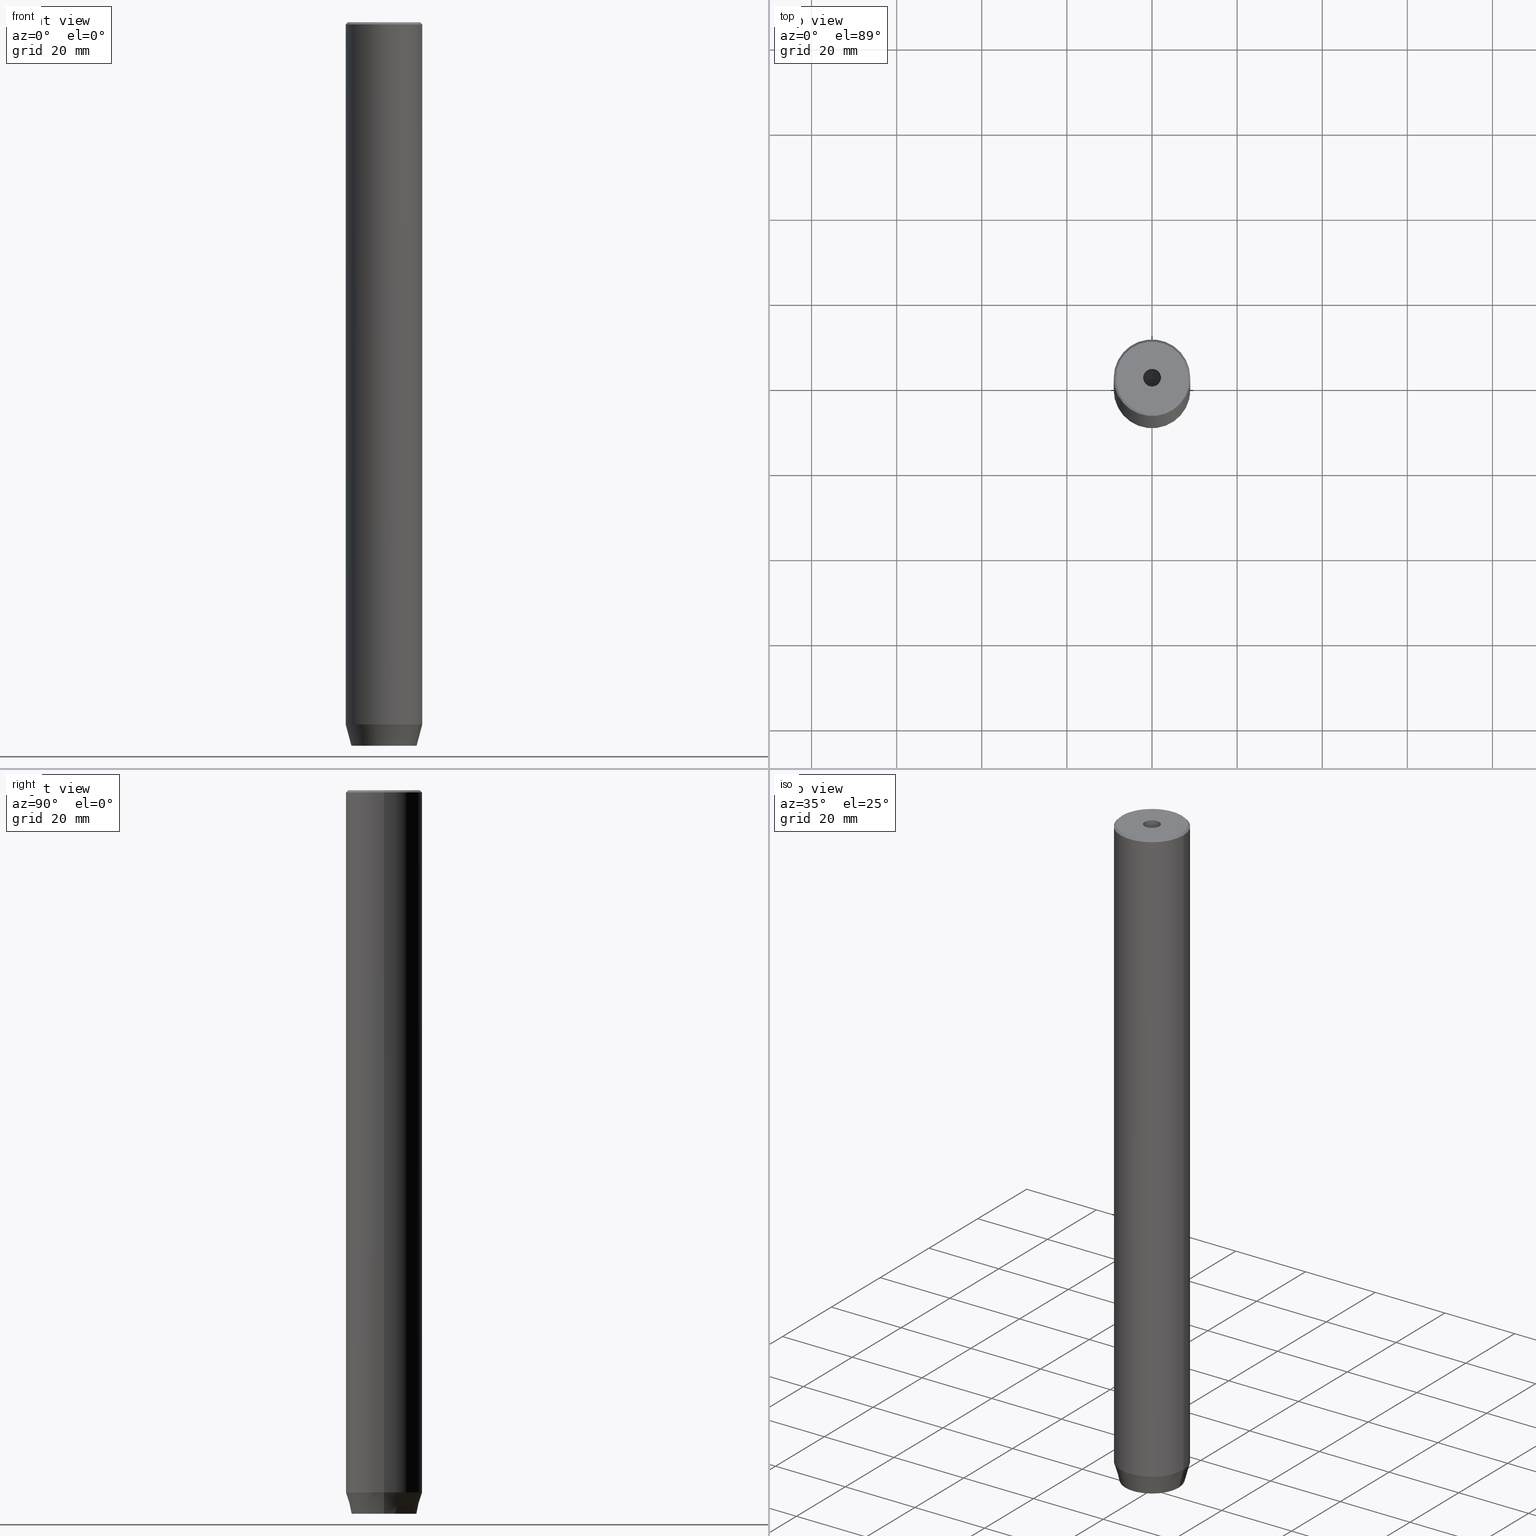
[diagram: canonical four-view strip — front | top / right | iso, engineering-drawing reading convention]
A machine part, canonical four-view strip (front | top / right | iso — engineering-drawing reading convention). The complete STEP part file that produces these views, byte-faithful:
ISO-10303-21;
HEADER;
FILE_DESCRIPTION (( 'STEP AP203' ),
    '1' );
FILE_NAME ('5474.STEP',
    '2024-01-02T20:35:26',
    ( '' ),
    ( '' ),
    'SwSTEP 2.0',
    'SolidWorks 2019',
    '' );
FILE_SCHEMA (( 'CONFIG_CONTROL_DESIGN' ));
ENDSEC;

DATA;
#1 = EDGE_LOOP ( 'NONE', ( #437, #369, #483, #522 ) ) ;
#2 = ORIENTED_EDGE ( 'NONE', *, *, #175, .T. ) ;
#3 = AXIS2_PLACEMENT_3D ( 'NONE', #268, #467, #51 ) ;
#4 = CARTESIAN_POINT ( 'NONE',  ( 3.000000000000000000, -1.732050807568876527, -167.2000000000000171 ) ) ;
#5 = LOCAL_TIME ( 21, 35, 26.00000000000000000, #195 ) ;
#6 = CYLINDRICAL_SURFACE ( 'NONE', #106, 2.099999999999997424 ) ;
#7 = DIRECTION ( 'NONE',  ( 1.000000000000000000, 0.000000000000000000, 0.000000000000000000 ) ) ;
#8 = ORIENTED_EDGE ( 'NONE', *, *, #336, .T. ) ;
#9 = APPLICATION_CONTEXT ( 'configuration controlled 3d designs of mechanical parts and assemblies' ) ;
#10 = CONICAL_SURFACE ( 'NONE', #305, 2.099999999999996092, 1.029744258676652091 ) ;
#11 = CARTESIAN_POINT ( 'NONE',  ( 0.000000000000000000, 0.000000000000000000, -1.990051048614449116E-16 ) ) ;
#12 = VECTOR ( 'NONE', #435, 1000.000000000000000 ) ;
#13 = ORIENTED_EDGE ( 'NONE', *, *, #412, .F. ) ;
#14 = AXIS2_PLACEMENT_3D ( 'NONE', #503, #179, #463 ) ;
#15 = CARTESIAN_POINT ( 'NONE',  ( 0.000000000000000000, 0.000000000000000000, 0.000000000000000000 ) ) ;
#16 = PERSON_AND_ORGANIZATION_ROLE ( 'creator' ) ;
#17 = DIRECTION ( 'NONE',  ( 1.000000000000000000, 0.000000000000000000, 0.000000000000000000 ) ) ;
#18 = ADVANCED_FACE ( 'NONE', ( #505 ), #418, .F. ) ;
#19 = DIRECTION ( 'NONE',  ( 0.000000000000000000, 0.000000000000000000, -1.000000000000000000 ) ) ;
#20 = AXIS2_PLACEMENT_3D ( 'NONE', #335, #30, #17 ) ;
#21 = PRODUCT_DEFINITION ( 'NEZN�M�', '', #129, #31 ) ;
#22 = VECTOR ( 'NONE', #530, 1000.000000000000000 ) ;
#23 = ORIENTED_EDGE ( 'NONE', *, *, #286, .T. ) ;
#24 = DIRECTION ( 'NONE',  ( 0.8660254037844385966, -0.5000000000000001110, 0.000000000000000000 ) ) ;
#25 = CARTESIAN_POINT ( 'NONE',  ( -1.500000000000000666, -2.598076211353316456, -170.0000000000000000 ) ) ;
#26 = ADVANCED_FACE ( 'NONE', ( #391 ), #430, .T. ) ;
#27 = APPROVAL_DATE_TIME ( #294, #130 ) ;
#28 = CARTESIAN_POINT ( 'NONE',  ( 7.660254037844374864, 0.000000000000000000, -170.0000000000000000 ) ) ;
#29 = CC_DESIGN_DATE_AND_TIME_ASSIGNMENT ( #432, #61, ( #21 ) ) ;
#30 = DIRECTION ( 'NONE',  ( -0.000000000000000000, -0.000000000000000000, 1.000000000000000000 ) ) ;
#31 = DESIGN_CONTEXT ( 'detailed design', #9, 'design' ) ;
#32 = DIRECTION ( 'NONE',  ( -0.000000000000000000, -0.000000000000000000, 1.000000000000000000 ) ) ;
#33 = EDGE_LOOP ( 'NONE', ( #23, #234, #275, #218 ) ) ;
#34 = VERTEX_POINT ( 'NONE', #341 ) ;
#35 = CARTESIAN_POINT ( 'NONE',  ( 0.000000000000000000, 0.000000000000000000, 0.000000000000000000 ) ) ;
#36 = ADVANCED_FACE ( 'NONE', ( #128 ), #65, .T. ) ;
#37 = DIRECTION ( 'NONE',  ( -0.000000000000000000, -0.000000000000000000, 1.000000000000000000 ) ) ;
#38 = CONICAL_SURFACE ( 'NONE', #375, 8.500000000000007105, 0.7853981633974447263 ) ;
#39 = SHAPE_DEFINITION_REPRESENTATION ( #506, #165 ) ;
#40 = LOCAL_TIME ( 21, 35, 26.00000000000000000, #519 ) ;
#41 = DIRECTION ( 'NONE',  ( 1.000000000000000000, 0.000000000000000000, 0.000000000000000000 ) ) ;
#42 = ORIENTED_EDGE ( 'NONE', *, *, #298, .T. ) ;
#43 = DATE_TIME_ROLE ( 'classification_date' ) ;
#44 = CARTESIAN_POINT ( 'NONE',  ( -1.084202172485504434E-16, 3.464101615137754830, -167.2000000000000171 ) ) ;
#45 = DIRECTION ( 'NONE',  ( -0.8571673007021111124, 1.049727191138617217E-16, 0.5150380749100562650 ) ) ;
#46 = CONICAL_SURFACE ( 'NONE', #274, 9.000000000000000000, 0.2617993877991497964 ) ;
#47 = EDGE_LOOP ( 'NONE', ( #373, #325, #227, #365 ) ) ;
#48 = VECTOR ( 'NONE', #79, 1000.000000000000114 ) ;
#49 = DIRECTION ( 'NONE',  ( 0.000000000000000000, -0.000000000000000000, 1.000000000000000000 ) ) ;
#50 = ADVANCED_FACE ( 'NONE', ( #565 ), #324, .T. ) ;
#51 = DIRECTION ( 'NONE',  ( 1.000000000000000000, 0.000000000000000000, 0.000000000000000000 ) ) ;
#52 = DIRECTION ( 'NONE',  ( -0.000000000000000000, -0.000000000000000000, 1.000000000000000000 ) ) ;
#53 = EDGE_CURVE ( 'NONE', #100, #497, #575, .T. ) ;
#54 = CARTESIAN_POINT ( 'NONE',  ( -3.000000000000000000, -1.732050807568877859, -170.0000000000000000 ) ) ;
#55 = VECTOR ( 'NONE', #390, 1000.000000000000000 ) ;
#56 = LINE ( 'NONE', #232, #242 ) ;
#57 = LOCAL_TIME ( 21, 35, 26.00000000000000000, #186 ) ;
#58 = VERTEX_POINT ( 'NONE', #578 ) ;
#59 = LINE ( 'NONE', #288, #55 ) ;
#60 = EDGE_CURVE ( 'NONE', #217, #102, #209, .T. ) ;
#61 = DATE_TIME_ROLE ( 'creation_date' ) ;
#62 = CARTESIAN_POINT ( 'NONE',  ( -1.499999999999999556, 2.598076211353316012, -170.0000000000000000 ) ) ;
#63 =( LENGTH_UNIT ( ) NAMED_UNIT ( * ) SI_UNIT ( .MILLI., .METRE. ) );
#64 = CARTESIAN_POINT ( 'NONE',  ( -1.500000000000000666, -2.598076211353316456, -167.2000000000000171 ) ) ;
#65 = CYLINDRICAL_SURFACE ( 'NONE', #74, 9.000000000000000000 ) ;
#66 = CARTESIAN_POINT ( 'NONE',  ( -3.000000000000000000, -1.732050807568877859, -167.2000000000000171 ) ) ;
#67 = ORIENTED_EDGE ( 'NONE', *, *, #205, .T. ) ;
#68 = EDGE_CURVE ( 'NONE', #34, #89, #59, .T. ) ;
#69 = ORIENTED_EDGE ( 'NONE', *, *, #326, .T. ) ;
#70 = EDGE_CURVE ( 'NONE', #507, #206, #199, .T. ) ;
#71 = CARTESIAN_POINT ( 'NONE',  ( -9.000000000000000000, 1.102182119232617714E-15, 0.000000000000000000 ) ) ;
#72 = PERSON_AND_ORGANIZATION_ROLE ( 'design_supplier' ) ;
#73 = CARTESIAN_POINT ( 'NONE',  ( 1.500000000000000222, -2.598076211353315568, -167.2000000000000171 ) ) ;
#74 = AXIS2_PLACEMENT_3D ( 'NONE', #245, #76, #257 ) ;
#75 = APPLICATION_CONTEXT ( 'configuration controlled 3d designs of mechanical parts and assemblies' ) ;
#76 = DIRECTION ( 'NONE',  ( -0.000000000000000000, -0.000000000000000000, 1.000000000000000000 ) ) ;
#77 = CC_DESIGN_APPROVAL ( #395, ( #315 ) ) ;
#78 = SECURITY_CLASSIFICATION_LEVEL ( 'unclassified' ) ;
#79 = DIRECTION ( 'NONE',  ( 0.7071067811865451302, 8.659560562354903276E-17, -0.7071067811865500152 ) ) ;
#80 = EDGE_LOOP ( 'NONE', ( #329, #355, #248, #114 ) ) ;
#81 = DATE_AND_TIME ( #346, #306 ) ;
#82 = LINE ( 'NONE', #536, #22 ) ;
#83 = ORIENTED_EDGE ( 'NONE', *, *, #361, .F. ) ;
#84 = CARTESIAN_POINT ( 'NONE',  ( 2.099999999999996092, 0.000000000000000000, -20.00000000000000000 ) ) ;
#85 = ADVANCED_FACE ( 'NONE', ( #574 ), #479, .F. ) ;
#86 = AXIS2_PLACEMENT_3D ( 'NONE', #239, #296, #251 ) ;
#87 = ORIENTED_EDGE ( 'NONE', *, *, #466, .F. ) ;
#88 = CARTESIAN_POINT ( 'NONE',  ( 1.500000000000000222, 2.598076211353315568, -170.0000000000000000 ) ) ;
#89 = VERTEX_POINT ( 'NONE', #113 ) ;
#90 = ORIENTED_EDGE ( 'NONE', *, *, #70, .T. ) ;
#91 = FACE_OUTER_BOUND ( 'NONE', #1, .T. ) ;
#92 = EDGE_LOOP ( 'NONE', ( #359, #215, #225, #42 ) ) ;
#93 = FACE_BOUND ( 'NONE', #147, .T. ) ;
#94 = VECTOR ( 'NONE', #587, 1000.000000000000000 ) ;
#95 = ADVANCED_FACE ( 'NONE', ( #153 ), #46, .T. ) ;
#96 = DIRECTION ( 'NONE',  ( -1.000000000000000000, 0.000000000000000000, 0.000000000000000000 ) ) ;
#97 = ADVANCED_FACE ( 'NONE', ( #472, #156 ), #191, .T. ) ;
#98 = ORIENTED_EDGE ( 'NONE', *, *, #568, .T. ) ;
#99 = LINE ( 'NONE', #4, #443 ) ;
#100 = VERTEX_POINT ( 'NONE', #482 ) ;
#101 = CARTESIAN_POINT ( 'NONE',  ( -8.500000000000007105, 0.000000000000000000, 0.000000000000000000 ) ) ;
#102 = VERTEX_POINT ( 'NONE', #151 ) ;
#103 = ORIENTED_EDGE ( 'NONE', *, *, #134, .T. ) ;
#104 = AXIS2_PLACEMENT_3D ( 'NONE', #557, #19, #383 ) ;
#105 = DIRECTION ( 'NONE',  ( 2.503857664561933362E-16, -1.000000000000000000, 0.000000000000000000 ) ) ;
#106 = AXIS2_PLACEMENT_3D ( 'NONE', #414, #222, #376 ) ;
#107 = CIRCLE ( 'NONE', #14, 9.000000000000000000 ) ;
#108 = ORIENTED_EDGE ( 'NONE', *, *, #488, .T. ) ;
#109 = CALENDAR_DATE ( 2024, 2, 1 ) ;
#110 = PLANE ( 'NONE',  #548 ) ;
#111 = LINE ( 'NONE', #198, #540 ) ;
#112 = EDGE_CURVE ( 'NONE', #299, #187, #481, .T. ) ;
#113 = CARTESIAN_POINT ( 'NONE',  ( 3.000000000000000000, -1.732050807568876527, -170.0000000000000000 ) ) ;
#114 = ORIENTED_EDGE ( 'NONE', *, *, #544, .T. ) ;
#115 = CALENDAR_DATE ( 2024, 2, 1 ) ;
#116 = ADVANCED_FACE ( 'NONE', ( #564 ), #345, .F. ) ;
#117 = LINE ( 'NONE', #62, #118 ) ;
#118 = VECTOR ( 'NONE', #243, 999.9999999999998863 ) ;
#119 = VECTOR ( 'NONE', #560, 1000.000000000000000 ) ;
#120 = CARTESIAN_POINT ( 'NONE',  ( 0.000000000000000000, 0.000000000000000000, 0.000000000000000000 ) ) ;
#121 = DIRECTION ( 'NONE',  ( -1.000000000000000000, -2.503857664561933362E-16, 0.000000000000000000 ) ) ;
#122 = DIRECTION ( 'NONE',  ( -0.000000000000000000, -0.000000000000000000, 1.000000000000000000 ) ) ;
#123 = DIRECTION ( 'NONE',  ( 1.000000000000000000, 0.000000000000000000, 0.000000000000000000 ) ) ;
#124 = EDGE_CURVE ( 'NONE', #511, #187, #425, .T. ) ;
#125 = DIRECTION ( 'NONE',  ( -0.8660254037844385966, -0.5000000000000001110, 0.000000000000000000 ) ) ;
#126 = EDGE_LOOP ( 'NONE', ( #184, #145, #277, #103 ) ) ;
#127 = CLOSED_SHELL ( 'NONE', ( #446, #18, #50, #26, #381, #97, #527, #36, #95, #429, #85, #553, #181, #116, #518, #583, #249, #262, #221 ) ) ;
#128 = FACE_OUTER_BOUND ( 'NONE', #80, .T. ) ;
#129 = PRODUCT_DEFINITION_FORMATION_WITH_SPECIFIED_SOURCE ( 'LIBOVOLN�', '', #203, .NOT_KNOWN. ) ;
#130 = APPROVAL ( #556, 'NEUR�EN�' ) ;
#131 = DIRECTION ( 'NONE',  ( -0.000000000000000000, -0.000000000000000000, 1.000000000000000000 ) ) ;
#132 = DIRECTION ( 'NONE',  ( -0.000000000000000000, -0.000000000000000000, 1.000000000000000000 ) ) ;
#133 = CARTESIAN_POINT ( 'NONE',  ( -5.207640850796248781E-15, 0.000000000000000000, -21.26180729995787999 ) ) ;
#134 = EDGE_CURVE ( 'NONE', #546, #393, #374, .T. ) ;
#135 = CIRCLE ( 'NONE', #283, 2.099999999999998757 ) ;
#136 = CARTESIAN_POINT ( 'NONE',  ( 1.500000000000000222, -2.598076211353315568, -170.0000000000000000 ) ) ;
#137 = ORIENTED_EDGE ( 'NONE', *, *, #176, .F. ) ;
#138 = DIRECTION ( 'NONE',  ( -2.503857664561932376E-16, 1.000000000000000000, 0.000000000000000000 ) ) ;
#139 = ORIENTED_EDGE ( 'NONE', *, *, #193, .F. ) ;
#140 = ORIENTED_EDGE ( 'NONE', *, *, #326, .F. ) ;
#141 = CARTESIAN_POINT ( 'NONE',  ( 8.500000000000007105, 1.071565949253934321E-15, 0.000000000000000000 ) ) ;
#142 = AXIS2_PLACEMENT_3D ( 'NONE', #439, #188, #526 ) ;
#143 = CARTESIAN_POINT ( 'NONE',  ( 0.000000000000000000, 0.000000000000000000, -170.0000000000000000 ) ) ;
#144 = FACE_OUTER_BOUND ( 'NONE', #259, .T. ) ;
#145 = ORIENTED_EDGE ( 'NONE', *, *, #230, .F. ) ;
#146 = ORIENTED_EDGE ( 'NONE', *, *, #475, .T. ) ;
#147 = EDGE_LOOP ( 'NONE', ( #541, #13 ) ) ;
#148 = DIRECTION ( 'NONE',  ( -0.000000000000000000, -0.000000000000000000, 1.000000000000000000 ) ) ;
#149 = EDGE_CURVE ( 'NONE', #313, #228, #117, .T. ) ;
#150 =( NAMED_UNIT ( * ) SI_UNIT ( $, .STERADIAN. ) SOLID_ANGLE_UNIT ( ) );
#151 = CARTESIAN_POINT ( 'NONE',  ( -7.660254037844374864, 1.020146339021393877E-15, -170.0000000000000000 ) ) ;
#152 = APPROVAL_ROLE ( '' ) ;
#153 = FACE_OUTER_BOUND ( 'NONE', #272, .T. ) ;
#154 = DIRECTION ( 'NONE',  ( 0.5000000000000001110, -0.8660254037844385966, 0.000000000000000000 ) ) ;
#155 = VECTOR ( 'NONE', #433, 1000.000000000000114 ) ;
#156 = FACE_OUTER_BOUND ( 'NONE', #279, .T. ) ;
#157 = VECTOR ( 'NONE', #580, 1000.000000000000000 ) ;
#158 = DIRECTION ( 'NONE',  ( 1.000000000000000000, 0.000000000000000000, 0.000000000000000000 ) ) ;
#159 = DIRECTION ( 'NONE',  ( -0.5000000000000001110, -0.8660254037844385966, 0.000000000000000000 ) ) ;
#160 = DIRECTION ( 'NONE',  ( -0.8660254037844385966, 0.5000000000000001110, 0.000000000000000000 ) ) ;
#161 = PERSON_AND_ORGANIZATION_ROLE ( 'classification_officer' ) ;
#162 = CARTESIAN_POINT ( 'NONE',  ( -9.000000000000000000, 1.102182119232617714E-15, -164.9999999999999716 ) ) ;
#163 = CC_DESIGN_DATE_AND_TIME_ASSIGNMENT ( #81, #43, ( #315 ) ) ;
#164 = DIRECTION ( 'NONE',  ( 1.000000000000000000, 0.000000000000000000, 0.000000000000000000 ) ) ;
#165 = ADVANCED_BREP_SHAPE_REPRESENTATION ( '5474', ( #473, #353 ), #486 ) ;
#166 = CARTESIAN_POINT ( 'NONE',  ( -2.099999999999997424, 2.571758278209438506E-16, 0.000000000000000000 ) ) ;
#167 = VECTOR ( 'NONE', #216, 999.9999999999998863 ) ;
#168 = AXIS2_PLACEMENT_3D ( 'NONE', #235, #121, #105 ) ;
#169 = CARTESIAN_POINT ( 'NONE',  ( -3.000000000000000888, 1.732050807568876527, -167.2000000000000171 ) ) ;
#170 = CARTESIAN_POINT ( 'NONE',  ( 0.000000000000000000, 0.000000000000000000, 0.000000000000000000 ) ) ;
#171 = CARTESIAN_POINT ( 'NONE',  ( -2.168404344971008868E-16, 3.464101615137753942, -170.0000000000000000 ) ) ;
#172 = AXIS2_PLACEMENT_3D ( 'NONE', #569, #524, #123 ) ;
#173 = ORIENTED_EDGE ( 'NONE', *, *, #254, .F. ) ;
#174 = DIRECTION ( 'NONE',  ( -0.8660254037844385966, -0.5000000000000001110, 0.000000000000000000 ) ) ;
#175 = EDGE_CURVE ( 'NONE', #187, #183, #331, .T. ) ;
#176 = EDGE_CURVE ( 'NONE', #102, #299, #380, .T. ) ;
#177 = LINE ( 'NONE', #328, #256 ) ;
#178 = ORIENTED_EDGE ( 'NONE', *, *, #332, .F. ) ;
#179 = DIRECTION ( 'NONE',  ( 0.000000000000000000, 0.000000000000000000, -1.000000000000000000 ) ) ;
#180 = ORIENTED_EDGE ( 'NONE', *, *, #499, .F. ) ;
#181 = ADVANCED_FACE ( 'NONE', ( #297 ), #110, .F. ) ;
#182 = CARTESIAN_POINT ( 'NONE',  ( 3.000000000000000000, -1.732050807568876527, -167.2000000000000171 ) ) ;
#183 = VERTEX_POINT ( 'NONE', #194 ) ;
#184 = ORIENTED_EDGE ( 'NONE', *, *, #238, .F. ) ;
#185 = DIRECTION ( 'NONE',  ( 0.8660254037844385966, -0.5000000000000001110, 0.000000000000000000 ) ) ;
#186 = COORDINATED_UNIVERSAL_TIME_OFFSET ( 1, 0, .AHEAD. ) ;
#187 = VERTEX_POINT ( 'NONE', #347 ) ;
#188 = DIRECTION ( 'NONE',  ( 0.000000000000000000, 0.000000000000000000, -1.000000000000000000 ) ) ;
#189 = VECTOR ( 'NONE', #287, 1000.000000000000000 ) ;
#190 = PERSON_AND_ORGANIZATION ( #244, #532 ) ;
#191 = PLANE ( 'NONE',  #104 ) ;
#192 = CIRCLE ( 'NONE', #457, 7.660254037844374864 ) ;
#193 = EDGE_CURVE ( 'NONE', #217, #58, #529, .T. ) ;
#194 = CARTESIAN_POINT ( 'NONE',  ( 9.000000000000000000, 0.000000000000000000, -0.4999999999999952260 ) ) ;
#195 = COORDINATED_UNIVERSAL_TIME_OFFSET ( 1, 0, .AHEAD. ) ;
#196 = FACE_OUTER_BOUND ( 'NONE', #126, .T. ) ;
#197 = ORIENTED_EDGE ( 'NONE', *, *, #402, .F. ) ;
#198 = CARTESIAN_POINT ( 'NONE',  ( -3.000000000000000444, -7.511572993685800087E-16, -170.0000000000000000 ) ) ;
#199 = LINE ( 'NONE', #291, #189 ) ;
#200 = DIRECTION ( 'NONE',  ( -1.000000000000000000, 0.000000000000000000, 0.000000000000000000 ) ) ;
#201 = DIRECTION ( 'NONE',  ( 1.000000000000000000, 0.000000000000000000, 0.000000000000000000 ) ) ;
#202 = ORIENTED_EDGE ( 'NONE', *, *, #466, .T. ) ;
#203 = PRODUCT ( '5474', '5474', '', ( #338 ) ) ;
#204 = PLANE ( 'NONE',  #293 ) ;
#205 = EDGE_CURVE ( 'NONE', #494, #511, #441, .T. ) ;
#206 = VERTEX_POINT ( 'NONE', #66 ) ;
#207 = CARTESIAN_POINT ( 'NONE',  ( 0.000000000000000000, 0.000000000000000000, -20.00000000000000000 ) ) ;
#208 = ORIENTED_EDGE ( 'NONE', *, *, #568, .F. ) ;
#209 = CIRCLE ( 'NONE', #558, 7.660254037844374864 ) ;
#210 = VECTOR ( 'NONE', #304, 1000.000000000000000 ) ;
#211 = EDGE_CURVE ( 'NONE', #507, #100, #301, .T. ) ;
#212 = ORIENTED_EDGE ( 'NONE', *, *, #357, .F. ) ;
#213 = DIRECTION ( 'NONE',  ( 1.000000000000000000, 0.000000000000000000, 0.000000000000000000 ) ) ;
#214 = DIRECTION ( 'NONE',  ( 1.000000000000000000, 0.000000000000000000, 0.000000000000000000 ) ) ;
#215 = ORIENTED_EDGE ( 'NONE', *, *, #485, .F. ) ;
#216 = DIRECTION ( 'NONE',  ( 0.8660254037844387076, 0.4999999999999999445, 0.000000000000000000 ) ) ;
#217 = VERTEX_POINT ( 'NONE', #28 ) ;
#218 = ORIENTED_EDGE ( 'NONE', *, *, #469, .T. ) ;
#219 = VECTOR ( 'NONE', #174, 1000.000000000000000 ) ;
#220 = DIRECTION ( 'NONE',  ( 1.000000000000000000, 0.000000000000000000, 0.000000000000000000 ) ) ;
#221 = ADVANCED_FACE ( 'NONE', ( #196 ), #445, .F. ) ;
#222 = DIRECTION ( 'NONE',  ( -0.000000000000000000, -0.000000000000000000, 1.000000000000000000 ) ) ;
#223 = ORIENTED_EDGE ( 'NONE', *, *, #53, .T. ) ;
#224 = ORIENTED_EDGE ( 'NONE', *, *, #405, .F. ) ;
#225 = ORIENTED_EDGE ( 'NONE', *, *, #423, .F. ) ;
#226 = CARTESIAN_POINT ( 'NONE',  ( -2.099999999999996092, 2.571758278209436534E-16, -20.00000000000000000 ) ) ;
#227 = ORIENTED_EDGE ( 'NONE', *, *, #175, .F. ) ;
#228 = VERTEX_POINT ( 'NONE', #171 ) ;
#229 = VECTOR ( 'NONE', #561, 1000.000000000000000 ) ;
#230 = EDGE_CURVE ( 'NONE', #312, #320, #531, .T. ) ;
#231 = AXIS2_PLACEMENT_3D ( 'NONE', #261, #456, #213 ) ;
#232 = CARTESIAN_POINT ( 'NONE',  ( -1.084202172485504434E-16, 3.464101615137754830, -167.2000000000000171 ) ) ;
#233 = ORIENTED_EDGE ( 'NONE', *, *, #581, .F. ) ;
#234 = ORIENTED_EDGE ( 'NONE', *, *, #211, .F. ) ;
#235 = CARTESIAN_POINT ( 'NONE',  ( -3.000000000000000444, -7.511572993685800087E-16, -167.2000000000000171 ) ) ;
#236 = ORIENTED_EDGE ( 'NONE', *, *, #149, .F. ) ;
#237 = PLANE ( 'NONE',  #496 ) ;
#238 = EDGE_CURVE ( 'NONE', #320, #393, #585, .T. ) ;
#239 = CARTESIAN_POINT ( 'NONE',  ( -1.499999999999999556, 2.598076211353316012, -167.2000000000000171 ) ) ;
#240 = ORIENTED_EDGE ( 'NONE', *, *, #475, .F. ) ;
#241 = VECTOR ( 'NONE', #340, 1000.000000000000114 ) ;
#242 = VECTOR ( 'NONE', #378, 1000.000000000000000 ) ;
#243 = DIRECTION ( 'NONE',  ( 0.8660254037844387076, 0.4999999999999999445, 0.000000000000000000 ) ) ;
#244 = PERSON ( 'NEUR�EN�', 'NEUR�EN�', 'NEUR�EN�', ('NEUR�EN�'), ('NEUR�EN�'), ('NEUR�EN�') ) ;
#245 = CARTESIAN_POINT ( 'NONE',  ( 0.000000000000000000, 0.000000000000000000, 0.000000000000000000 ) ) ;
#246 = DIRECTION ( 'NONE',  ( 0.000000000000000000, 0.000000000000000000, 1.000000000000000000 ) ) ;
#247 = CARTESIAN_POINT ( 'NONE',  ( -2.168404344971008868E-16, -3.464101615137754830, -167.2000000000000171 ) ) ;
#248 = ORIENTED_EDGE ( 'NONE', *, *, #451, .T. ) ;
#249 = ADVANCED_FACE ( 'NONE', ( #533 ), #204, .T. ) ;
#250 = CARTESIAN_POINT ( 'NONE',  ( 2.099999999999997424, 0.000000000000000000, 0.000000000000000000 ) ) ;
#251 = DIRECTION ( 'NONE',  ( -0.8660254037844387076, -0.4999999999999999445, 0.000000000000000000 ) ) ;
#252 = DIRECTION ( 'NONE',  ( 0.000000000000000000, 0.000000000000000000, -1.000000000000000000 ) ) ;
#253 = DIRECTION ( 'NONE',  ( -0.000000000000000000, -0.000000000000000000, 1.000000000000000000 ) ) ;
#254 = EDGE_CURVE ( 'NONE', #511, #494, #455, .T. ) ;
#255 = CARTESIAN_POINT ( 'NONE',  ( 0.000000000000000000, 0.000000000000000000, -20.00000000000000000 ) ) ;
#256 = VECTOR ( 'NONE', #185, 1000.000000000000000 ) ;
#257 = DIRECTION ( 'NONE',  ( 1.000000000000000000, 0.000000000000000000, 0.000000000000000000 ) ) ;
#258 = LINE ( 'NONE', #449, #571 ) ;
#259 = EDGE_LOOP ( 'NONE', ( #302, #173, #415, #269 ) ) ;
#260 = APPROVAL_STATUS ( 'not_yet_approved' ) ;
#261 = CARTESIAN_POINT ( 'NONE',  ( 0.000000000000000000, 0.000000000000000000, -164.9999999999999716 ) ) ;
#262 = ADVANCED_FACE ( 'NONE', ( #360 ), #10, .F. ) ;
#263 = PERSON_AND_ORGANIZATION ( #244, #532 ) ;
#264 = CARTESIAN_POINT ( 'NONE',  ( -3.000000000000000888, 1.732050807568876527, -170.0000000000000000 ) ) ;
#265 = CC_DESIGN_SECURITY_CLASSIFICATION ( #315, ( #129 ) ) ;
#266 = COORDINATED_UNIVERSAL_TIME_OFFSET ( 1, 0, .AHEAD. ) ;
#267 = DIRECTION ( 'NONE',  ( -1.000000000000000000, 0.000000000000000000, -0.000000000000000000 ) ) ;
#268 = CARTESIAN_POINT ( 'NONE',  ( 0.000000000000000000, 0.000000000000000000, -20.00000000000000000 ) ) ;
#269 = ORIENTED_EDGE ( 'NONE', *, *, #544, .F. ) ;
#270 = APPROVAL ( #513, 'NEUR�EN�' ) ;
#271 = FACE_OUTER_BOUND ( 'NONE', #417, .T. ) ;
#272 = EDGE_LOOP ( 'NONE', ( #137, #554, #450, #212 ) ) ;
#273 = ORIENTED_EDGE ( 'NONE', *, *, #361, .T. ) ;
#274 = AXIS2_PLACEMENT_3D ( 'NONE', #387, #122, #428 ) ;
#275 = ORIENTED_EDGE ( 'NONE', *, *, #488, .F. ) ;
#276 = CARTESIAN_POINT ( 'NONE',  ( 9.000000000000000000, 0.000000000000000000, 0.000000000000000000 ) ) ;
#277 = ORIENTED_EDGE ( 'NONE', *, *, #581, .T. ) ;
#278 = PLANE ( 'NONE',  #409 ) ;
#279 = EDGE_LOOP ( 'NONE', ( #535, #371 ) ) ;
#280 = CC_DESIGN_PERSON_AND_ORGANIZATION_ASSIGNMENT ( #491, #161, ( #315 ) ) ;
#281 = ORIENTED_EDGE ( 'NONE', *, *, #211, .T. ) ;
#282 = DIRECTION ( 'NONE',  ( 0.000000000000000000, 0.000000000000000000, -1.000000000000000000 ) ) ;
#283 = AXIS2_PLACEMENT_3D ( 'NONE', #11, #508, #545 ) ;
#284 = APPROVAL_ROLE ( '' ) ;
#285 = APPROVAL_DATE_TIME ( #470, #270 ) ;
#286 = EDGE_CURVE ( 'NONE', #89, #100, #489, .T. ) ;
#287 = DIRECTION ( 'NONE',  ( -0.8660254037844385966, 0.5000000000000001110, 0.000000000000000000 ) ) ;
#288 = CARTESIAN_POINT ( 'NONE',  ( 3.000000000000000000, 0.000000000000000000, -170.0000000000000000 ) ) ;
#289 = CC_DESIGN_PERSON_AND_ORGANIZATION_ASSIGNMENT ( #263, #72, ( #129 ) ) ;
#290 = PERSON_AND_ORGANIZATION ( #244, #532 ) ;
#291 = CARTESIAN_POINT ( 'NONE',  ( -1.500000000000000666, -2.598076211353316456, -167.2000000000000171 ) ) ;
#292 = CARTESIAN_POINT ( 'NONE',  ( 0.000000000000000000, 0.000000000000000000, -164.9999999999999716 ) ) ;
#293 = AXIS2_PLACEMENT_3D ( 'NONE', #392, #308, #267 ) ;
#294 = DATE_AND_TIME ( #115, #40 ) ;
#295 = VECTOR ( 'NONE', #447, 1000.000000000000000 ) ;
#296 = DIRECTION ( 'NONE',  ( -0.4999999999999999445, 0.8660254037844387076, 0.000000000000000000 ) ) ;
#297 = FACE_OUTER_BOUND ( 'NONE', #493, .T. ) ;
#298 = EDGE_CURVE ( 'NONE', #319, #313, #577, .T. ) ;
#299 = VERTEX_POINT ( 'NONE', #162 ) ;
#300 = DATE_AND_TIME ( #448, #333 ) ;
#301 = LINE ( 'NONE', #247, #12 ) ;
#302 = ORIENTED_EDGE ( 'NONE', *, *, #339, .F. ) ;
#303 = ORIENTED_EDGE ( 'NONE', *, *, #485, .T. ) ;
#304 = DIRECTION ( 'NONE',  ( -0.000000000000000000, -0.000000000000000000, -1.000000000000000000 ) ) ;
#305 = AXIS2_PLACEMENT_3D ( 'NONE', #255, #539, #201 ) ;
#306 = LOCAL_TIME ( 21, 35, 26.00000000000000000, #266 ) ;
#307 = CC_DESIGN_PERSON_AND_ORGANIZATION_ASSIGNMENT ( #576, #454, ( #129 ) ) ;
#308 = DIRECTION ( 'NONE',  ( 0.000000000000000000, 0.000000000000000000, -1.000000000000000000 ) ) ;
#309 = UNCERTAINTY_MEASURE_WITH_UNIT (LENGTH_MEASURE( 1.000000000000000082E-05 ), #63, 'distance_accuracy_value', 'NONE');
#310 = ORIENTED_EDGE ( 'NONE', *, *, #405, .T. ) ;
#311 = DIRECTION ( 'NONE',  ( 1.000000000000000000, 0.000000000000000000, 0.000000000000000000 ) ) ;
#312 = VERTEX_POINT ( 'NONE', #84 ) ;
#313 = VERTEX_POINT ( 'NONE', #264 ) ;
#314 = CARTESIAN_POINT ( 'NONE',  ( -2.099999999999998757, 2.571758278209440478E-16, -1.990051048614449116E-16 ) ) ;
#315 = SECURITY_CLASSIFICATION ( '', '', #78 ) ;
#316 = ORIENTED_EDGE ( 'NONE', *, *, #573, .T. ) ;
#317 = CARTESIAN_POINT ( 'NONE',  ( -3.000000000000000888, 1.732050807568876527, -167.2000000000000171 ) ) ;
#318 = CARTESIAN_POINT ( 'NONE',  ( 3.000000000000000000, 0.000000000000000000, -167.2000000000000171 ) ) ;
#319 = VERTEX_POINT ( 'NONE', #317 ) ;
#320 = VERTEX_POINT ( 'NONE', #459 ) ;
#321 = ORIENTED_EDGE ( 'NONE', *, *, #112, .T. ) ;
#322 = LINE ( 'NONE', #555, #363 ) ;
#323 = EDGE_LOOP ( 'NONE', ( #549, #509, #413, #139 ) ) ;
#324 = CONICAL_SURFACE ( 'NONE', #398, 8.500000000000007105, 0.7853981633974447263 ) ;
#325 = ORIENTED_EDGE ( 'NONE', *, *, #339, .T. ) ;
#326 = EDGE_CURVE ( 'NONE', #206, #497, #487, .T. ) ;
#327 = PLANE ( 'NONE',  #559 ) ;
#328 = CARTESIAN_POINT ( 'NONE',  ( 1.500000000000000222, 2.598076211353315568, -167.2000000000000171 ) ) ;
#329 = ORIENTED_EDGE ( 'NONE', *, *, #112, .F. ) ;
#330 = DIRECTION ( 'NONE',  ( -0.000000000000000000, -0.000000000000000000, 1.000000000000000000 ) ) ;
#331 = CIRCLE ( 'NONE', #142, 9.000000000000000000 ) ;
#332 = EDGE_CURVE ( 'NONE', #396, #34, #348, .T. ) ;
#333 = LOCAL_TIME ( 21, 35, 26.00000000000000000, #404 ) ;
#334 = CALENDAR_DATE ( 2024, 2, 1 ) ;
#335 = CARTESIAN_POINT ( 'NONE',  ( 0.000000000000000000, 0.000000000000000000, -1.990051048614449116E-16 ) ) ;
#336 = EDGE_CURVE ( 'NONE', #396, #426, #82, .T. ) ;
#337 = DIRECTION ( 'NONE',  ( 0.8660254037844385966, 0.5000000000000001110, 0.000000000000000000 ) ) ;
#338 = MECHANICAL_CONTEXT ( 'NONE', #75, 'mechanical' ) ;
#339 = EDGE_CURVE ( 'NONE', #494, #183, #352, .T. ) ;
#340 = DIRECTION ( 'NONE',  ( 0.2588190451025210725, 0.000000000000000000, 0.9659258262890680902 ) ) ;
#341 = CARTESIAN_POINT ( 'NONE',  ( 3.000000000000000000, 1.732050807568876527, -170.0000000000000000 ) ) ;
#342 = AXIS2_PLACEMENT_3D ( 'NONE', #207, #131, #534 ) ;
#343 = VECTOR ( 'NONE', #125, 1000.000000000000000 ) ;
#344 = FACE_OUTER_BOUND ( 'NONE', #452, .T. ) ;
#345 = PLANE ( 'NONE',  #570 ) ;
#346 = CALENDAR_DATE ( 2024, 2, 1 ) ;
#347 = CARTESIAN_POINT ( 'NONE',  ( -9.000000000000000000, 1.102182119232617714E-15, -0.4999999999999952260 ) ) ;
#348 = LINE ( 'NONE', #498, #157 ) ;
#349 = CARTESIAN_POINT ( 'NONE',  ( 0.000000000000000000, 0.000000000000000000, -170.0000000000000000 ) ) ;
#350 = APPROVAL_DATE_TIME ( #300, #395 ) ;
#351 = AXIS2_PLACEMENT_3D ( 'NONE', #35, #132, #41 ) ;
#352 = LINE ( 'NONE', #394, #48 ) ;
#353 = AXIS2_PLACEMENT_3D ( 'NONE', #563, #246, #158 ) ;
#354 = CARTESIAN_POINT ( 'NONE',  ( -3.000000000000000000, -1.732050807568877859, -167.2000000000000171 ) ) ;
#355 = ORIENTED_EDGE ( 'NONE', *, *, #357, .T. ) ;
#356 = VERTEX_POINT ( 'NONE', #44 ) ;
#357 = EDGE_CURVE ( 'NONE', #299, #58, #419, .T. ) ;
#358 = DIRECTION ( 'NONE',  ( -0.000000000000000000, -0.000000000000000000, 1.000000000000000000 ) ) ;
#359 = ORIENTED_EDGE ( 'NONE', *, *, #149, .T. ) ;
#360 = FACE_OUTER_BOUND ( 'NONE', #504, .T. ) ;
#361 = EDGE_CURVE ( 'NONE', #386, #312, #258, .T. ) ;
#362 = VECTOR ( 'NONE', #330, 1000.000000000000000 ) ;
#363 = VECTOR ( 'NONE', #138, 1000.000000000000000 ) ;
#364 = ORIENTED_EDGE ( 'NONE', *, *, #423, .T. ) ;
#365 = ORIENTED_EDGE ( 'NONE', *, *, #124, .F. ) ;
#366 = CARTESIAN_POINT ( 'NONE',  ( -2.168404344971008868E-16, -3.464101615137754830, -167.2000000000000171 ) ) ;
#367 = ORIENTED_EDGE ( 'NONE', *, *, #70, .F. ) ;
#368 = CARTESIAN_POINT ( 'NONE',  ( 1.500000000000000222, -2.598076211353315568, -167.2000000000000171 ) ) ;
#369 = ORIENTED_EDGE ( 'NONE', *, *, #469, .F. ) ;
#370 = PRODUCT_RELATED_PRODUCT_CATEGORY ( 'detail', '', ( #203 ) ) ;
#371 = ORIENTED_EDGE ( 'NONE', *, *, #510, .F. ) ;
#372 = FACE_OUTER_BOUND ( 'NONE', #444, .T. ) ;
#373 = ORIENTED_EDGE ( 'NONE', *, *, #205, .F. ) ;
#374 = CIRCLE ( 'NONE', #20, 2.099999999999998757 ) ;
#375 = AXIS2_PLACEMENT_3D ( 'NONE', #15, #282, #96 ) ;
#376 = DIRECTION ( 'NONE',  ( 1.000000000000000000, 0.000000000000000000, 0.000000000000000000 ) ) ;
#377 = DIRECTION ( 'NONE',  ( 1.000000000000000000, 0.000000000000000000, 0.000000000000000000 ) ) ;
#378 = DIRECTION ( 'NONE',  ( -0.000000000000000000, -0.000000000000000000, -1.000000000000000000 ) ) ;
#379 = DIRECTION ( 'NONE',  ( 1.000000000000000000, 0.000000000000000000, 0.000000000000000000 ) ) ;
#380 = LINE ( 'NONE', #517, #388 ) ;
#381 = ADVANCED_FACE ( 'NONE', ( #399 ), #403, .T. ) ;
#382 = APPROVAL_PERSON_ORGANIZATION ( #528, #395, #397 ) ;
#383 = DIRECTION ( 'NONE',  ( -1.000000000000000000, 0.000000000000000000, -0.000000000000000000 ) ) ;
#384 = CARTESIAN_POINT ( 'NONE',  ( 0.000000000000000000, 0.000000000000000000, -164.9999999999999716 ) ) ;
#385 = CARTESIAN_POINT ( 'NONE',  ( 9.000000000000000000, 0.000000000000000000, -164.9999999999999716 ) ) ;
#386 = VERTEX_POINT ( 'NONE', #133 ) ;
#387 = CARTESIAN_POINT ( 'NONE',  ( 0.000000000000000000, 0.000000000000000000, -164.9999999999999716 ) ) ;
#388 = VECTOR ( 'NONE', #476, 1000.000000000000114 ) ;
#389 = ORIENTED_EDGE ( 'NONE', *, *, #298, .F. ) ;
#390 = DIRECTION ( 'NONE',  ( 0.000000000000000000, -1.000000000000000000, 0.000000000000000000 ) ) ;
#391 = FACE_OUTER_BOUND ( 'NONE', #323, .T. ) ;
#392 = CARTESIAN_POINT ( 'NONE',  ( 0.000000000000000000, 0.000000000000000000, -167.2000000000000171 ) ) ;
#393 = VERTEX_POINT ( 'NONE', #314 ) ;
#394 = CARTESIAN_POINT ( 'NONE',  ( 8.500000000000007105, 1.040949779275251126E-15, 0.000000000000000000 ) ) ;
#395 = APPROVAL ( #260, 'NEUR�EN�' ) ;
#396 = VERTEX_POINT ( 'NONE', #406 ) ;
#397 = APPROVAL_ROLE ( '' ) ;
#398 = AXIS2_PLACEMENT_3D ( 'NONE', #120, #252, #200 ) ;
#399 = FACE_OUTER_BOUND ( 'NONE', #422, .T. ) ;
#400 = APPROVAL_PERSON_ORGANIZATION ( #516, #130, #152 ) ;
#401 = ORIENTED_EDGE ( 'NONE', *, *, #451, .F. ) ;
#402 = EDGE_CURVE ( 'NONE', #228, #34, #495, .T. ) ;
#403 = CYLINDRICAL_SURFACE ( 'NONE', #538, 9.000000000000000000 ) ;
#404 = COORDINATED_UNIVERSAL_TIME_OFFSET ( 1, 0, .AHEAD. ) ;
#405 = EDGE_CURVE ( 'NONE', #386, #320, #408, .T. ) ;
#406 = CARTESIAN_POINT ( 'NONE',  ( 3.000000000000000000, 1.732050807568876527, -167.2000000000000171 ) ) ;
#407 = ORIENTED_EDGE ( 'NONE', *, *, #499, .T. ) ;
#408 = LINE ( 'NONE', #226, #550 ) ;
#409 = AXIS2_PLACEMENT_3D ( 'NONE', #461, #49, #220 ) ;
#410 = FACE_OUTER_BOUND ( 'NONE', #543, .T. ) ;
#411 = ORIENTED_EDGE ( 'NONE', *, *, #68, .F. ) ;
#412 = EDGE_CURVE ( 'NONE', #393, #546, #135, .T. ) ;
#413 = ORIENTED_EDGE ( 'NONE', *, *, #573, .F. ) ;
#414 = CARTESIAN_POINT ( 'NONE',  ( 0.000000000000000000, 0.000000000000000000, 0.000000000000000000 ) ) ;
#415 = ORIENTED_EDGE ( 'NONE', *, *, #124, .T. ) ;
#416 = PLANE ( 'NONE',  #168 ) ;
#417 = EDGE_LOOP ( 'NONE', ( #442, #67 ) ) ;
#418 = CONICAL_SURFACE ( 'NONE', #484, 2.099999999999996092, 1.029744258676652091 ) ;
#419 = CIRCLE ( 'NONE', #231, 9.000000000000000000 ) ;
#420 = CARTESIAN_POINT ( 'NONE',  ( -1.499999999999999556, 2.598076211353316012, -167.2000000000000171 ) ) ;
#421 = EDGE_LOOP ( 'NONE', ( #364, #202, #8, #108, #90, #407 ) ) ;
#422 = EDGE_LOOP ( 'NONE', ( #316, #321, #2, #401 ) ) ;
#423 = EDGE_CURVE ( 'NONE', #319, #356, #542, .T. ) ;
#424 = PERSON_AND_ORGANIZATION ( #244, #532 ) ;
#425 = LINE ( 'NONE', #520, #155 ) ;
#426 = VERTEX_POINT ( 'NONE', #182 ) ;
#427 = APPLICATION_PROTOCOL_DEFINITION ( 'international standard', 'config_control_design', 1994, #9 ) ;
#428 = DIRECTION ( 'NONE',  ( 1.000000000000000000, 0.000000000000000000, 0.000000000000000000 ) ) ;
#429 = ADVANCED_FACE ( 'NONE', ( #144 ), #38, .T. ) ;
#430 = CONICAL_SURFACE ( 'NONE', #477, 9.000000000000000000, 0.2617993877991497964 ) ;
#431 = AXIS2_PLACEMENT_3D ( 'NONE', #384, #480, #379 ) ;
#432 = DATE_AND_TIME ( #334, #5 ) ;
#433 = DIRECTION ( 'NONE',  ( -0.7071067811865451302, 0.000000000000000000, -0.7071067811865500152 ) ) ;
#434 = LINE ( 'NONE', #250, #119 ) ;
#435 = DIRECTION ( 'NONE',  ( -0.000000000000000000, -0.000000000000000000, -1.000000000000000000 ) ) ;
#436 = ORIENTED_EDGE ( 'NONE', *, *, #412, .T. ) ;
#437 = ORIENTED_EDGE ( 'NONE', *, *, #68, .T. ) ;
#438 =( NAMED_UNIT ( * ) PLANE_ANGLE_UNIT ( ) SI_UNIT ( $, .RADIAN. ) );
#439 = CARTESIAN_POINT ( 'NONE',  ( 0.000000000000000000, 0.000000000000000000, -0.4999999999999952260 ) ) ;
#440 = ORIENTED_EDGE ( 'NONE', *, *, #53, .F. ) ;
#441 = CIRCLE ( 'NONE', #172, 8.500000000000007105 ) ;
#442 = ORIENTED_EDGE ( 'NONE', *, *, #254, .T. ) ;
#443 = VECTOR ( 'NONE', #547, 1000.000000000000000 ) ;
#444 = EDGE_LOOP ( 'NONE', ( #98, #389, #180, #69 ) ) ;
#445 = CYLINDRICAL_SURFACE ( 'NONE', #351, 2.099999999999997424 ) ;
#446 = ADVANCED_FACE ( 'NONE', ( #410 ), #6, .F. ) ;
#447 = DIRECTION ( 'NONE',  ( -0.000000000000000000, -0.000000000000000000, -1.000000000000000000 ) ) ;
#448 = CALENDAR_DATE ( 2024, 2, 1 ) ;
#449 = CARTESIAN_POINT ( 'NONE',  ( 2.099999999999996092, 0.000000000000000000, -20.00000000000000000 ) ) ;
#450 = ORIENTED_EDGE ( 'NONE', *, *, #193, .T. ) ;
#451 = EDGE_CURVE ( 'NONE', #58, #183, #552, .T. ) ;
#452 = EDGE_LOOP ( 'NONE', ( #453, #178, #87, #303 ) ) ;
#453 = ORIENTED_EDGE ( 'NONE', *, *, #402, .T. ) ;
#454 = PERSON_AND_ORGANIZATION_ROLE ( 'creator' ) ;
#455 = CIRCLE ( 'NONE', #525, 8.500000000000007105 ) ;
#456 = DIRECTION ( 'NONE',  ( -0.000000000000000000, -0.000000000000000000, 1.000000000000000000 ) ) ;
#457 = AXIS2_PLACEMENT_3D ( 'NONE', #143, #148, #7 ) ;
#458 = CC_DESIGN_PERSON_AND_ORGANIZATION_ASSIGNMENT ( #424, #16, ( #21 ) ) ;
#459 = CARTESIAN_POINT ( 'NONE',  ( -2.099999999999996092, 2.571758278209436534E-16, -20.00000000000000000 ) ) ;
#460 = DIRECTION ( 'NONE',  ( 1.000000000000000000, 0.000000000000000000, -0.000000000000000000 ) ) ;
#461 = CARTESIAN_POINT ( 'NONE',  ( 0.000000000000000000, 0.000000000000000000, 0.000000000000000000 ) ) ;
#462 = EDGE_LOOP ( 'NONE', ( #236, #208, #440, #490, #411, #197 ) ) ;
#463 = DIRECTION ( 'NONE',  ( 1.000000000000000000, 0.000000000000000000, 0.000000000000000000 ) ) ;
#464 = CARTESIAN_POINT ( 'NONE',  ( 0.000000000000000000, 0.000000000000000000, -20.00000000000000000 ) ) ;
#465 = CARTESIAN_POINT ( 'NONE',  ( 2.099999999999998757, 0.000000000000000000, -1.990051048614449116E-16 ) ) ;
#466 = EDGE_CURVE ( 'NONE', #356, #396, #177, .T. ) ;
#467 = DIRECTION ( 'NONE',  ( -0.000000000000000000, -0.000000000000000000, 1.000000000000000000 ) ) ;
#468 = CC_DESIGN_APPROVAL ( #130, ( #129 ) ) ;
#469 = EDGE_CURVE ( 'NONE', #426, #89, #99, .T. ) ;
#470 = DATE_AND_TIME ( #109, #57 ) ;
#471 = DIRECTION ( 'NONE',  ( -0.8660254037844385966, 0.5000000000000001110, 0.000000000000000000 ) ) ;
#472 = FACE_BOUND ( 'NONE', #462, .T. ) ;
#473 = MANIFOLD_SOLID_BREP ( 'Vrt�k z�vitn�ku pro M5 z�vit1', #127 ) ;
#474 = DIRECTION ( 'NONE',  ( -2.503857664561932376E-16, 1.000000000000000000, 0.000000000000000000 ) ) ;
#475 = EDGE_CURVE ( 'NONE', #320, #312, #514, .T. ) ;
#476 = DIRECTION ( 'NONE',  ( -0.2588190451025210725, 3.169619151431769255E-17, 0.9659258262890680902 ) ) ;
#477 = AXIS2_PLACEMENT_3D ( 'NONE', #292, #253, #164 ) ;
#478 = DIRECTION ( 'NONE',  ( 0.5000000000000001110, 0.8660254037844385966, -0.000000000000000000 ) ) ;
#479 = PLANE ( 'NONE',  #86 ) ;
#480 = DIRECTION ( 'NONE',  ( -0.000000000000000000, -0.000000000000000000, 1.000000000000000000 ) ) ;
#481 = LINE ( 'NONE', #71, #229 ) ;
#482 = CARTESIAN_POINT ( 'NONE',  ( -2.168404344971008868E-16, -3.464101615137754830, -170.0000000000000000 ) ) ;
#483 = ORIENTED_EDGE ( 'NONE', *, *, #336, .F. ) ;
#484 = AXIS2_PLACEMENT_3D ( 'NONE', #464, #52, #579 ) ;
#485 = EDGE_CURVE ( 'NONE', #356, #228, #56, .T. ) ;
#486 =( GEOMETRIC_REPRESENTATION_CONTEXT ( 3 ) GLOBAL_UNCERTAINTY_ASSIGNED_CONTEXT ( ( #309 ) ) GLOBAL_UNIT_ASSIGNED_CONTEXT ( ( #63, #438, #150 ) ) REPRESENTATION_CONTEXT ( 'NONE', 'WORKASPACE' ) );
#487 = LINE ( 'NONE', #354, #210 ) ;
#488 = EDGE_CURVE ( 'NONE', #426, #507, #512, .T. ) ;
#489 = LINE ( 'NONE', #136, #343 ) ;
#490 = ORIENTED_EDGE ( 'NONE', *, *, #286, .F. ) ;
#491 = PERSON_AND_ORGANIZATION ( #244, #532 ) ;
#492 = CARTESIAN_POINT ( 'NONE',  ( 0.000000000000000000, 0.000000000000000000, 0.000000000000000000 ) ) ;
#493 = EDGE_LOOP ( 'NONE', ( #223, #140, #367, #281 ) ) ;
#494 = VERTEX_POINT ( 'NONE', #141 ) ;
#495 = LINE ( 'NONE', #88, #94 ) ;
#496 = AXIS2_PLACEMENT_3D ( 'NONE', #523, #478, #471 ) ;
#497 = VERTEX_POINT ( 'NONE', #54 ) ;
#498 = CARTESIAN_POINT ( 'NONE',  ( 3.000000000000000000, 1.732050807568876527, -167.2000000000000171 ) ) ;
#499 = EDGE_CURVE ( 'NONE', #206, #319, #322, .T. ) ;
#500 = DIRECTION ( 'NONE',  ( -0.000000000000000000, 0.000000000000000000, -1.000000000000000000 ) ) ;
#501 = ORIENTED_EDGE ( 'NONE', *, *, #230, .T. ) ;
#502 = CC_DESIGN_PERSON_AND_ORGANIZATION_ASSIGNMENT ( #190, #572, ( #203 ) ) ;
#503 = CARTESIAN_POINT ( 'NONE',  ( 0.000000000000000000, 0.000000000000000000, -0.4999999999999952260 ) ) ;
#504 = EDGE_LOOP ( 'NONE', ( #224, #273, #501 ) ) ;
#505 = FACE_OUTER_BOUND ( 'NONE', #566, .T. ) ;
#506 = PRODUCT_DEFINITION_SHAPE ( 'NONE', 'NONE',  #21 ) ;
#507 = VERTEX_POINT ( 'NONE', #366 ) ;
#508 = DIRECTION ( 'NONE',  ( -0.000000000000000000, -0.000000000000000000, 1.000000000000000000 ) ) ;
#509 = ORIENTED_EDGE ( 'NONE', *, *, #176, .T. ) ;
#510 = EDGE_CURVE ( 'NONE', #102, #217, #192, .T. ) ;
#511 = VERTEX_POINT ( 'NONE', #101 ) ;
#512 = LINE ( 'NONE', #368, #219 ) ;
#513 = APPROVAL_STATUS ( 'not_yet_approved' ) ;
#514 = CIRCLE ( 'NONE', #3, 2.099999999999996092 ) ;
#515 = CIRCLE ( 'NONE', #431, 9.000000000000000000 ) ;
#516 = PERSON_AND_ORGANIZATION ( #244, #532 ) ;
#517 = CARTESIAN_POINT ( 'NONE',  ( -9.000000000000000000, 1.102182119232617714E-15, -164.9999999999999716 ) ) ;
#518 = ADVANCED_FACE ( 'NONE', ( #91 ), #327, .F. ) ;
#519 = COORDINATED_UNIVERSAL_TIME_OFFSET ( 1, 0, .AHEAD. ) ;
#520 = CARTESIAN_POINT ( 'NONE',  ( -8.500000000000007105, 0.000000000000000000, 0.000000000000000000 ) ) ;
#521 = DIRECTION ( 'NONE',  ( -0.000000000000000000, -0.000000000000000000, 1.000000000000000000 ) ) ;
#522 = ORIENTED_EDGE ( 'NONE', *, *, #332, .T. ) ;
#523 = CARTESIAN_POINT ( 'NONE',  ( 1.500000000000000222, 2.598076211353315568, -167.2000000000000171 ) ) ;
#524 = DIRECTION ( 'NONE',  ( -0.000000000000000000, -0.000000000000000000, 1.000000000000000000 ) ) ;
#525 = AXIS2_PLACEMENT_3D ( 'NONE', #492, #37, #311 ) ;
#526 = DIRECTION ( 'NONE',  ( 1.000000000000000000, 0.000000000000000000, 0.000000000000000000 ) ) ;
#527 = ADVANCED_FACE ( 'NONE', ( #93, #271 ), #278, .T. ) ;
#528 = PERSON_AND_ORGANIZATION ( #244, #532 ) ;
#529 = LINE ( 'NONE', #385, #241 ) ;
#530 = DIRECTION ( 'NONE',  ( 0.000000000000000000, -1.000000000000000000, 0.000000000000000000 ) ) ;
#531 = CIRCLE ( 'NONE', #342, 2.099999999999996092 ) ;
#532 = ORGANIZATION ( 'NEUR�EN�', 'NEUR�EN�', '' ) ;
#533 = FACE_OUTER_BOUND ( 'NONE', #421, .T. ) ;
#534 = DIRECTION ( 'NONE',  ( 1.000000000000000000, 0.000000000000000000, 0.000000000000000000 ) ) ;
#535 = ORIENTED_EDGE ( 'NONE', *, *, #60, .F. ) ;
#536 = CARTESIAN_POINT ( 'NONE',  ( 3.000000000000000000, 0.000000000000000000, -167.2000000000000171 ) ) ;
#537 = VECTOR ( 'NONE', #160, 1000.000000000000000 ) ;
#538 = AXIS2_PLACEMENT_3D ( 'NONE', #170, #358, #214 ) ;
#539 = DIRECTION ( 'NONE',  ( -0.000000000000000000, -0.000000000000000000, 1.000000000000000000 ) ) ;
#540 = VECTOR ( 'NONE', #474, 1000.000000000000000 ) ;
#541 = ORIENTED_EDGE ( 'NONE', *, *, #134, .F. ) ;
#542 = LINE ( 'NONE', #420, #167 ) ;
#543 = EDGE_LOOP ( 'NONE', ( #240, #562, #436, #233 ) ) ;
#544 = EDGE_CURVE ( 'NONE', #183, #187, #107, .T. ) ;
#545 = DIRECTION ( 'NONE',  ( 1.000000000000000000, 0.000000000000000000, 0.000000000000000000 ) ) ;
#546 = VERTEX_POINT ( 'NONE', #465 ) ;
#547 = DIRECTION ( 'NONE',  ( -0.000000000000000000, -0.000000000000000000, -1.000000000000000000 ) ) ;
#548 = AXIS2_PLACEMENT_3D ( 'NONE', #64, #159, #24 ) ;
#549 = ORIENTED_EDGE ( 'NONE', *, *, #60, .T. ) ;
#550 = VECTOR ( 'NONE', #45, 1000.000000000000000 ) ;
#551 = APPROVAL_PERSON_ORGANIZATION ( #290, #270, #284 ) ;
#552 = LINE ( 'NONE', #276, #362 ) ;
#553 = ADVANCED_FACE ( 'NONE', ( #372 ), #416, .F. ) ;
#554 = ORIENTED_EDGE ( 'NONE', *, *, #510, .T. ) ;
#555 = CARTESIAN_POINT ( 'NONE',  ( -3.000000000000000444, -7.511572993685800087E-16, -167.2000000000000171 ) ) ;
#556 = APPROVAL_STATUS ( 'not_yet_approved' ) ;
#557 = CARTESIAN_POINT ( 'NONE',  ( 0.000000000000000000, 7.660254037844374864, -170.0000000000000000 ) ) ;
#558 = AXIS2_PLACEMENT_3D ( 'NONE', #349, #521, #377 ) ;
#559 = AXIS2_PLACEMENT_3D ( 'NONE', #318, #460, #500 ) ;
#560 = DIRECTION ( 'NONE',  ( -0.000000000000000000, -0.000000000000000000, 1.000000000000000000 ) ) ;
#561 = DIRECTION ( 'NONE',  ( -0.000000000000000000, -0.000000000000000000, 1.000000000000000000 ) ) ;
#562 = ORIENTED_EDGE ( 'NONE', *, *, #238, .T. ) ;
#563 = CARTESIAN_POINT ( 'NONE',  ( 0.000000000000000000, 0.000000000000000000, 0.000000000000000000 ) ) ;
#564 = FACE_OUTER_BOUND ( 'NONE', #33, .T. ) ;
#565 = FACE_OUTER_BOUND ( 'NONE', #47, .T. ) ;
#566 = EDGE_LOOP ( 'NONE', ( #83, #310, #146 ) ) ;
#567 = APPLICATION_PROTOCOL_DEFINITION ( 'international standard', 'config_control_design', 1994, #75 ) ;
#568 = EDGE_CURVE ( 'NONE', #497, #313, #111, .T. ) ;
#569 = CARTESIAN_POINT ( 'NONE',  ( 0.000000000000000000, 0.000000000000000000, 0.000000000000000000 ) ) ;
#570 = AXIS2_PLACEMENT_3D ( 'NONE', #73, #154, #337 ) ;
#571 = VECTOR ( 'NONE', #586, 1000.000000000000000 ) ;
#572 = PERSON_AND_ORGANIZATION_ROLE ( 'design_owner' ) ;
#573 = EDGE_CURVE ( 'NONE', #58, #299, #515, .T. ) ;
#574 = FACE_OUTER_BOUND ( 'NONE', #92, .T. ) ;
#575 = LINE ( 'NONE', #25, #537 ) ;
#576 = PERSON_AND_ORGANIZATION ( #244, #532 ) ;
#577 = LINE ( 'NONE', #169, #295 ) ;
#578 = CARTESIAN_POINT ( 'NONE',  ( 9.000000000000000000, 0.000000000000000000, -164.9999999999999716 ) ) ;
#579 = DIRECTION ( 'NONE',  ( 1.000000000000000000, 0.000000000000000000, 0.000000000000000000 ) ) ;
#580 = DIRECTION ( 'NONE',  ( -0.000000000000000000, -0.000000000000000000, -1.000000000000000000 ) ) ;
#581 = EDGE_CURVE ( 'NONE', #312, #546, #434, .T. ) ;
#582 = VECTOR ( 'NONE', #32, 1000.000000000000000 ) ;
#583 = ADVANCED_FACE ( 'NONE', ( #344 ), #237, .F. ) ;
#584 = CC_DESIGN_APPROVAL ( #270, ( #21 ) ) ;
#585 = LINE ( 'NONE', #166, #582 ) ;
#586 = DIRECTION ( 'NONE',  ( 0.8571673007021111124, 0.000000000000000000, 0.5150380749100562650 ) ) ;
#587 = DIRECTION ( 'NONE',  ( 0.8660254037844385966, -0.5000000000000001110, 0.000000000000000000 ) ) ;
ENDSEC;
END-ISO-10303-21;
